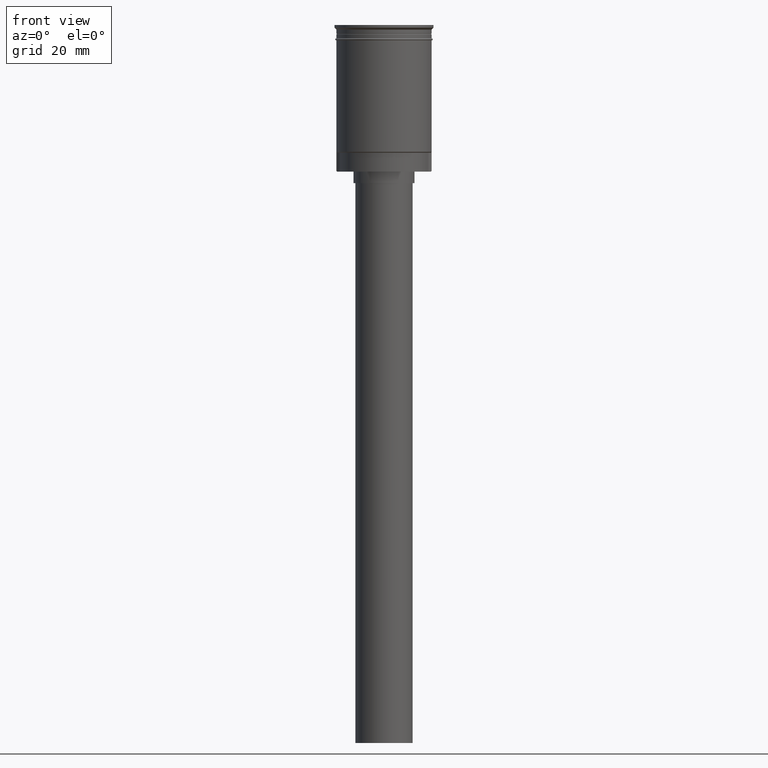
[diagram: clean part render]
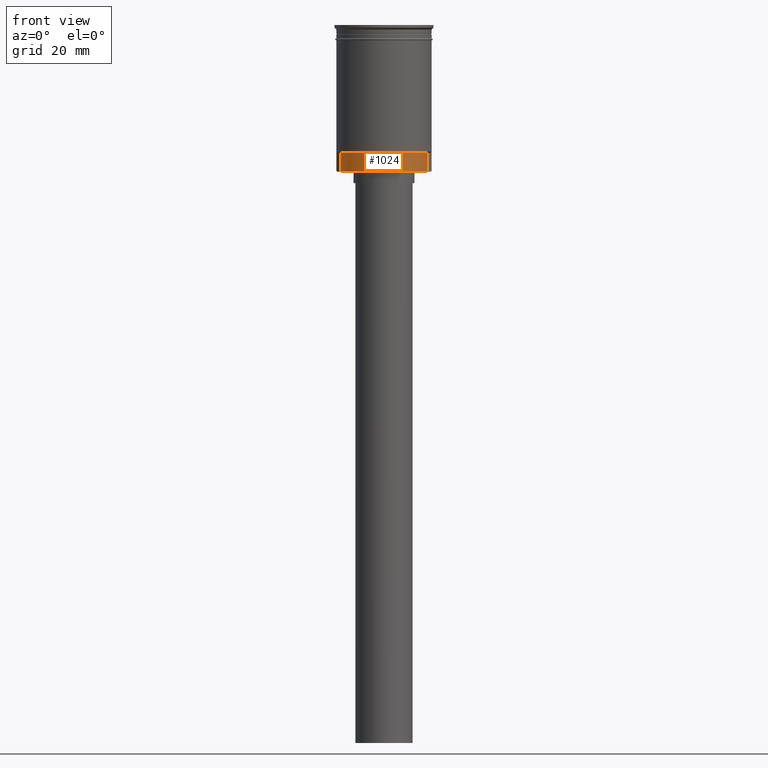
[diagram: same view with one face highlighted and labeled with its STEP entity id]
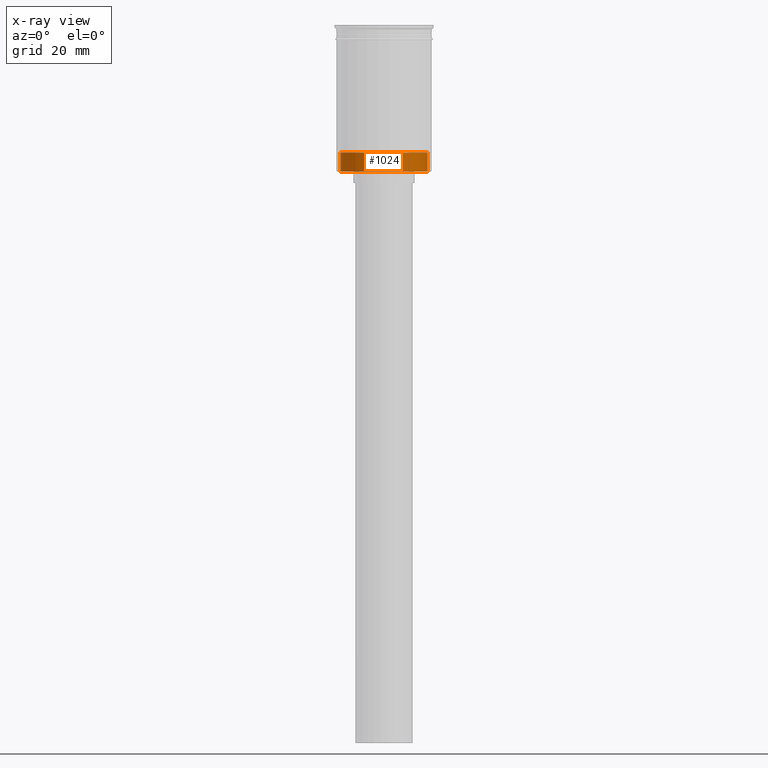
[diagram: x-ray of the same camera — body ghosted, the highlighted face saturated]
A machine part, front view. The second image highlights one B-rep face of the part: STEP entity #1024.
The next image is the same camera in x-ray: the body ghosted, the highlighted face saturated — about 0% of this face is hidden behind the body in this view.
In plain terms, the highlighted cylindrical surface (partial cylindrical patch) has radius 11.55 mm, axis along (-0, -0, 1).
Its self-contained STEP definition (entity closure, byte-faithful):
#22 = CARTESIAN_POINT ( 'NONE',  ( 11.39766701030927543, -1.869675566002708900, -38.50000000000000000 ) ) ;
#36 = CYLINDRICAL_SURFACE ( 'NONE', #1539, 11.54999999999999716 ) ;
#50 = VERTEX_POINT ( 'NONE', #750 ) ;
#235 = CARTESIAN_POINT ( 'NONE',  ( 11.39766701030927543, -1.869675566002708900, -38.50000000000000000 ) ) ;
#249 = DIRECTION ( 'NONE',  ( -0.000000000000000000, -0.000000000000000000, 1.000000000000000000 ) ) ;
#275 = FACE_OUTER_BOUND ( 'NONE', #1086, .T. ) ;
#301 = VERTEX_POINT ( 'NONE', #828 ) ;
#305 = EDGE_CURVE ( 'NONE', #924, #50, #1155, .T. ) ;
#443 = EDGE_CURVE ( 'NONE', #916, #924, #486, .T. ) ;
#449 = ORIENTED_EDGE ( 'NONE', *, *, #508, .F. ) ;
#486 = LINE ( 'NONE', #235, #547 ) ;
#505 = CIRCLE ( 'NONE', #1571, 11.54999999999999716 ) ;
#507 = CARTESIAN_POINT ( 'NONE',  ( -11.39766701030927543, -1.869675566002713563, -38.50000000000000000 ) ) ;
#508 = EDGE_CURVE ( 'NONE', #301, #50, #1242, .T. ) ;
#535 = CARTESIAN_POINT ( 'NONE',  ( 0.000000000000000000, 0.000000000000000000, -38.50000000000000000 ) ) ;
#547 = VECTOR ( 'NONE', #249, 1000.000000000000000 ) ;
#572 = CARTESIAN_POINT ( 'NONE',  ( 0.000000000000000000, 0.000000000000000000, -33.50000000000000000 ) ) ;
#628 = CARTESIAN_POINT ( 'NONE',  ( 11.39766701030927543, -1.869675566002708900, -33.50000000000000000 ) ) ;
#750 = CARTESIAN_POINT ( 'NONE',  ( -11.39766701030927543, -1.869675566002713563, -33.50000000000000000 ) ) ;
#756 = DIRECTION ( 'NONE',  ( 0.000000000000000000, 0.000000000000000000, -1.000000000000000000 ) ) ;
#828 = CARTESIAN_POINT ( 'NONE',  ( -11.39766701030927543, -1.869675566002713563, -38.50000000000000000 ) ) ;
#916 = VERTEX_POINT ( 'NONE', #22 ) ;
#924 = VERTEX_POINT ( 'NONE', #628 ) ;
#942 = ORIENTED_EDGE ( 'NONE', *, *, #1136, .F. ) ;
#1009 = CARTESIAN_POINT ( 'NONE',  ( 0.000000000000000000, 0.000000000000000000, -38.50000000000000000 ) ) ;
#1024 = ADVANCED_FACE ( 'NONE', ( #275 ), #36, .T. ) ;
#1032 = DIRECTION ( 'NONE',  ( -0.000000000000000000, -0.000000000000000000, 1.000000000000000000 ) ) ;
#1070 = VECTOR ( 'NONE', #1384, 1000.000000000000000 ) ;
#1075 = DIRECTION ( 'NONE',  ( -1.000000000000000000, 0.000000000000000000, 0.000000000000000000 ) ) ;
#1086 = EDGE_LOOP ( 'NONE', ( #1286, #449, #942, #1311 ) ) ;
#1136 = EDGE_CURVE ( 'NONE', #916, #301, #505, .T. ) ;
#1155 = CIRCLE ( 'NONE', #1180, 11.54999999999999716 ) ;
#1180 = AXIS2_PLACEMENT_3D ( 'NONE', #572, #1308, #1075 ) ;
#1242 = LINE ( 'NONE', #507, #1070 ) ;
#1286 = ORIENTED_EDGE ( 'NONE', *, *, #305, .T. ) ;
#1308 = DIRECTION ( 'NONE',  ( 0.000000000000000000, 0.000000000000000000, -1.000000000000000000 ) ) ;
#1311 = ORIENTED_EDGE ( 'NONE', *, *, #443, .T. ) ;
#1384 = DIRECTION ( 'NONE',  ( -0.000000000000000000, -0.000000000000000000, 1.000000000000000000 ) ) ;
#1503 = DIRECTION ( 'NONE',  ( -1.000000000000000000, 0.000000000000000000, 0.000000000000000000 ) ) ;
#1521 = DIRECTION ( 'NONE',  ( 1.000000000000000000, 0.000000000000000000, 0.000000000000000000 ) ) ;
#1539 = AXIS2_PLACEMENT_3D ( 'NONE', #535, #1032, #1521 ) ;
#1571 = AXIS2_PLACEMENT_3D ( 'NONE', #1009, #756, #1503 ) ;